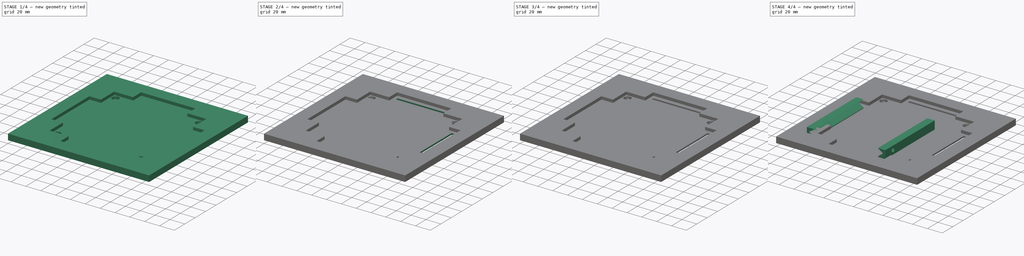
[diagram: build sequence overview — one tinted view per stage of 4, left to right]
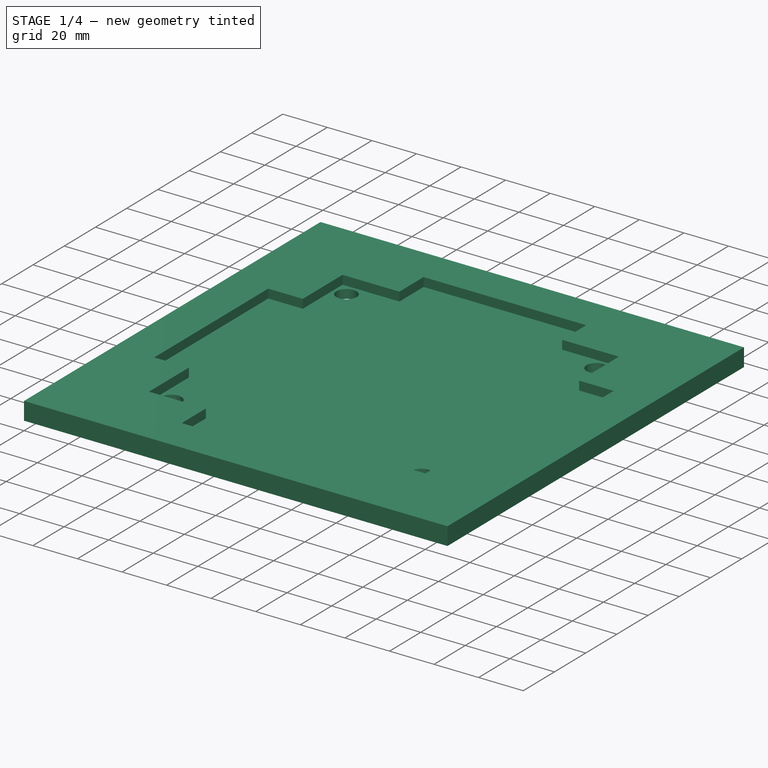
[diagram: stage 1 of 4 — iso view after this stage's code; geometry added in this stage tinted green]
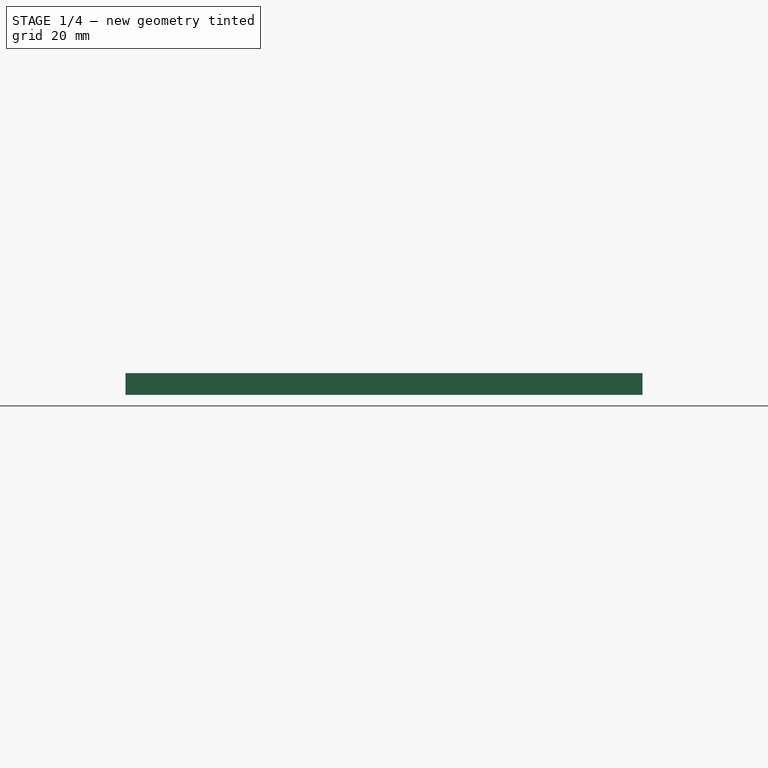
[diagram: stage 1 of 4 — front view after this stage's code; geometry added in this stage tinted green]
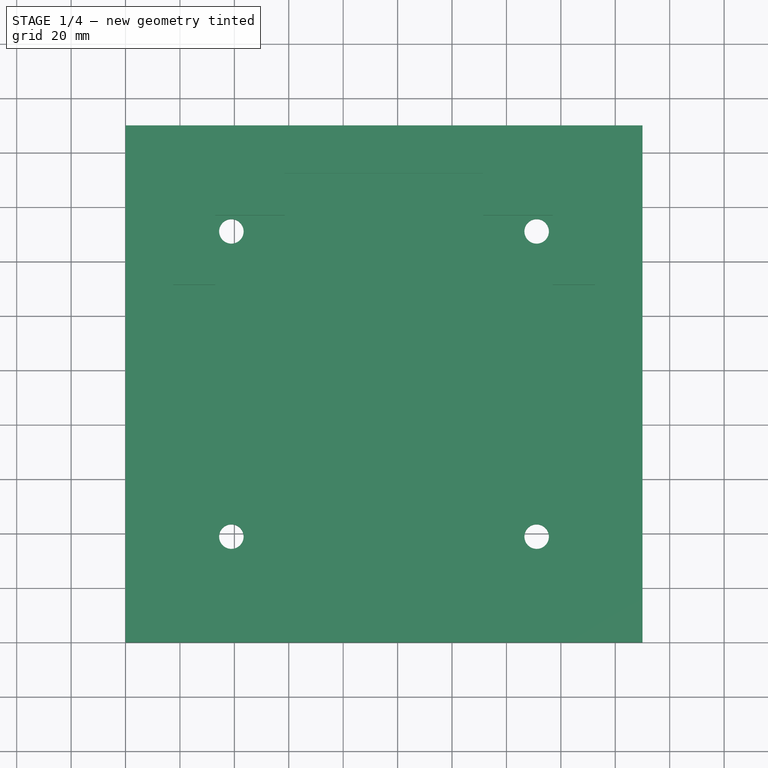
[diagram: stage 1 of 4 — top view after this stage's code; geometry added in this stage tinted green]
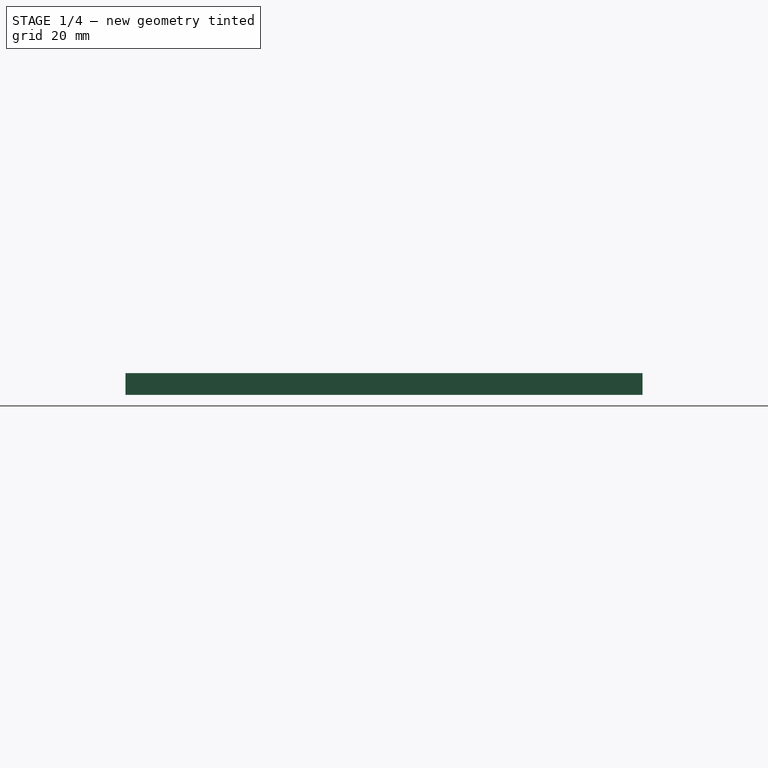
[diagram: stage 1 of 4 — right view after this stage's code; geometry added in this stage tinted green]
FCSTD DOCUMENT  (FreeCAD 0.18R16146 (Git))
Label: BigBase
License: All rights reserved
LicenseURL: http://en.wikipedia.org/wiki/All_rights_reserved
objects: Sketcher::SketchObject×12, PartDesign::Pocket×9, PartDesign::Pad×3, PartDesign::Body×2
note: 38 computed .brp shape members not serialized (recipe doc carries the construction recipe); baked Part::Feature solids carry a one-line shape summary decoded from their .brp

FEATURE [Sketcher::SketchObject] Sketch
  MapMode = 5
  Support = -> [XY_Plane]
  sketch-geometry (4):
    g0: LineSegment StartX=0 StartY=0 StartZ=0 EndX=190 EndY=0 EndZ=0
    g1: LineSegment StartX=0 StartY=0 StartZ=0 EndX=0 EndY=190 EndZ=0
    g2: LineSegment StartX=0 StartY=190 StartZ=0 EndX=190 EndY=190 EndZ=0
    g3: LineSegment StartX=190 StartY=190 StartZ=0 EndX=190 EndY=0 EndZ=0
  constraints (11):
    c: Coincident(g0,g-1)
    c: PointOnObject(g0,g-1)
    c: Coincident(g1,g0)
    c: PointOnObject(g1,g-2)
    c: Distance(g1) = 190
    c: Distance(g0) = 190
    c: Coincident(g2,g1)
    c: Horizontal(g2)
    c: Coincident(g3,g2)
    c: Coincident(g3,g0)
    c: Vertical(g3)
FEATURE [PartDesign::Pad] Pad
  Length = 8
  Length2 = 100
  Profile = -> Sketch
  Type = 0
FEATURE [PartDesign::Body] Body001  label="BaseFloor"
  Group = -> [Sketch001,Pad002,Sketch007,Pocket,Sketch002,Pocket001,Sketch003,Pocket002,Sketch004,Pad001,Sketch005,Pocket003,Sketch006,Pocket004]
  Origin = -> Origin001
  Placement = pos=(20,20.1,4) rot=(0,0,-1;0rad)
  Tip = -> Pocket004
FEATURE [Sketcher::SketchObject] Sketch008
  MapMode = 5
  Placement = pos=(0,0,8) rot=(0,0,1;0rad)
  Support = -> [Pad]
  expr: Constraints[59] = (190 - (73 + 25.5 * 2)) / 2
  expr: Constraints[58] = (190 - (73 + 25.5 * 2)) / 2
  sketch-geometry (22):
    g0: LineSegment StartX=17.5 StartY=131.5 StartZ=0 EndX=17.5 EndY=58.5 EndZ=0
    g1: LineSegment StartX=17.5 StartY=131.5 StartZ=0 EndX=33 EndY=131.5 EndZ=0
    g2: LineSegment StartX=17.5 StartY=58.5 StartZ=0 EndX=33 EndY=58.5 EndZ=0
    g3: LineSegment StartX=33 StartY=58.5 StartZ=0 EndX=33 EndY=33 EndZ=0
    g4: LineSegment StartX=33 StartY=33 StartZ=0 EndX=58.5 EndY=33 EndZ=0
    g5: LineSegment StartX=33 StartY=131.5 StartZ=0 EndX=33 EndY=157 EndZ=0
    g6: LineSegment StartX=33 StartY=157 StartZ=0 EndX=58.5 EndY=157 EndZ=0
    g7: LineSegment StartX=58.5 StartY=157 StartZ=0 EndX=58.5 EndY=172.5 EndZ=0
    g8: LineSegment StartX=58.5 StartY=172.5 StartZ=0 EndX=131.5 EndY=172.5 EndZ=0
    g9: LineSegment StartX=131.5 StartY=172.5 StartZ=0 EndX=131.5 EndY=157 EndZ=0
    g10: LineSegment StartX=131.5 StartY=157 StartZ=0 EndX=157 EndY=157 EndZ=0
    g11: LineSegment StartX=157 StartY=157 StartZ=0 EndX=157 EndY=131.5 EndZ=0
    g12: LineSegment StartX=157 StartY=131.5 StartZ=0 EndX=172.5 EndY=131.5 EndZ=0
    g13: LineSegment StartX=172.5 StartY=131.5 StartZ=0 EndX=172.5 EndY=58.5 EndZ=0
    g14: LineSegment StartX=172.5 StartY=58.5 StartZ=0 EndX=157 EndY=58.5 EndZ=0
    g15: LineSegment StartX=157 StartY=58.5 StartZ=0 EndX=157 EndY=33 EndZ=0
    g16: LineSegment StartX=157 StartY=33 StartZ=0 EndX=131.5 EndY=33 EndZ=0
    g17: LineSegment StartX=58.5 StartY=33 StartZ=0 EndX=58.5 EndY=17.5 EndZ=0
    g18: LineSegment StartX=58.5 StartY=17.5 StartZ=0 EndX=131.5 EndY=17.5 EndZ=0
    g19: LineSegment StartX=131.5 StartY=17.5 StartZ=0 EndX=131.5 EndY=33 EndZ=0
    g20: LineSegment [constr] StartX=0 StartY=200 StartZ=0 EndX=200 EndY=200 EndZ=0
    g21: LineSegment [constr] StartX=200 StartY=200 StartZ=0 EndX=200 EndY=0 EndZ=0
  constraints (67):
    c: Vertical(g0)
    c: Coincident(g1,g0)
    c: Horizontal(g1)
    c: Coincident(g2,g0)
    c: Coincident(g3,g2)
    c: Vertical(g3)
    c: Coincident(g4,g3)
    c: Coincident(g5,g1)
    c: Coincident(g6,g5)
    c: Coincident(g7,g6)
    c: Vertical(g7)
    c: Coincident(g8,g7)
    c: Coincident(g9,g8)
    c: Coincident(g10,g9)
    c: Horizontal(g10)
    c: Coincident(g11,g10)
    c: Vertical(g11)
    c: Coincident(g12,g11)
    c: Horizontal(g12)
    c: Coincident(g13,g12)
    c: Vertical(g13)
    c: Coincident(g14,g13)
    c: Coincident(g15,g14)
    c: Vertical(g15)
    c: Coincident(g16,g15)
    c: Coincident(g17,g4)
    c: Coincident(g18,g17)
    c: Coincident(g19,g18)
    c: Coincident(g19,g16)
    c: Vertical(g19)
    c: Horizontal(g4)
    c: Distance(g4) = 25.5
    c: Distance(g18) = 73
    c: Vertical(g17)
    c: Distance(g16) = 25.5
    c: Distance(g17) = 15.5
    c: Distance(g19) = 15.5
    c: Distance(g3) = 25.5
    c: Distance(g2) = 15.5
    c: Distance(g0) = 73
    c: Horizontal(g2)
    c: Distance(g1) = 15.5
    c: Distance(g5) = 25.5
    c: Distance(g6) = 25.5
    c: Distance(g7) = 15.5
    c: Vertical(g5)
    c: Horizontal(g6)
    c: Horizontal(g8)
    c: Horizontal(g14)
    c: Distance(g8) = 73
    c: Vertical(g9)
    c: Distance(g9) = 15.5
    c: Distance(g10) = 25.5
    c: Distance(g11) = 25.5
    c: Distance(g12) = 15.5
    c: Distance(g13) = 73
    c: Distance(g15) = 25.5
    c: Horizontal(g16)
    c: Distance(g3,g-1) = 33
    c: Distance(g3,g-2) = 33
    c: PointOnObject(g20,g-2)
    c: Horizontal(g20)
    c: PointOnObject(g21,g-1)
    c: Vertical(g21)
    c: DistanceY(g21,g21) = 200
    c: DistanceX(g20,g20) = 200
    c: Coincident(g21,g20)
FEATURE [PartDesign::Pocket] Pocket005
  BaseFeature = -> Pad
  Length = 4
  Length2 = 100
  Profile = -> Sketch008
  Type = 0
FEATURE [Sketcher::SketchObject] Sketch009
  ExternalGeometry = -> [Pocket005]
  MapMode = 5
  Placement = pos=(0,0,4) rot=(0,0,1;0rad)
  Support = -> [Pocket005]
  sketch-geometry (4):
    g0: Circle CenterX=38.9 CenterY=151.1 CenterZ=0 NormalX=0 NormalY=0 NormalZ=1 AngleXU=0 Radius=4.5
    g1: Circle CenterX=151.1 CenterY=151.1 CenterZ=0 NormalX=0 NormalY=0 NormalZ=1 AngleXU=0 Radius=4.5
    g2: Circle CenterX=151.1 CenterY=38.9 CenterZ=0 NormalX=0 NormalY=0 NormalZ=1 AngleXU=0 Radius=4.5
    g3: Circle CenterX=38.9 CenterY=38.9 CenterZ=0 NormalX=0 NormalY=0 NormalZ=1 AngleXU=0 Radius=4.5
  constraints (12):
    c: Radius(g0) = 4.5
    c: Radius(g1) = 4.5
    c: Radius(g2) = 4.5
    c: Distance(g3,g-10) = 5.9
    c: Distance(g3,g-9) = 5.9
    c: Radius(g3) = 4.5
    c: Distance(g0,g-4) = 5.9
    c: Distance(g0,g-3) = 5.9
    c: Distance(g1,g-5) = 5.9
    c: Distance(g1,g-6) = 5.9
    c: Distance(g2,g-7) = 5.9
    c: Distance(g2,g-8) = 5.9
FEATURE [PartDesign::Pocket] Pocket006
  BaseFeature = -> Pocket005
  Length = 3
  Length2 = 100
  Profile = -> Sketch009
  Type = 1
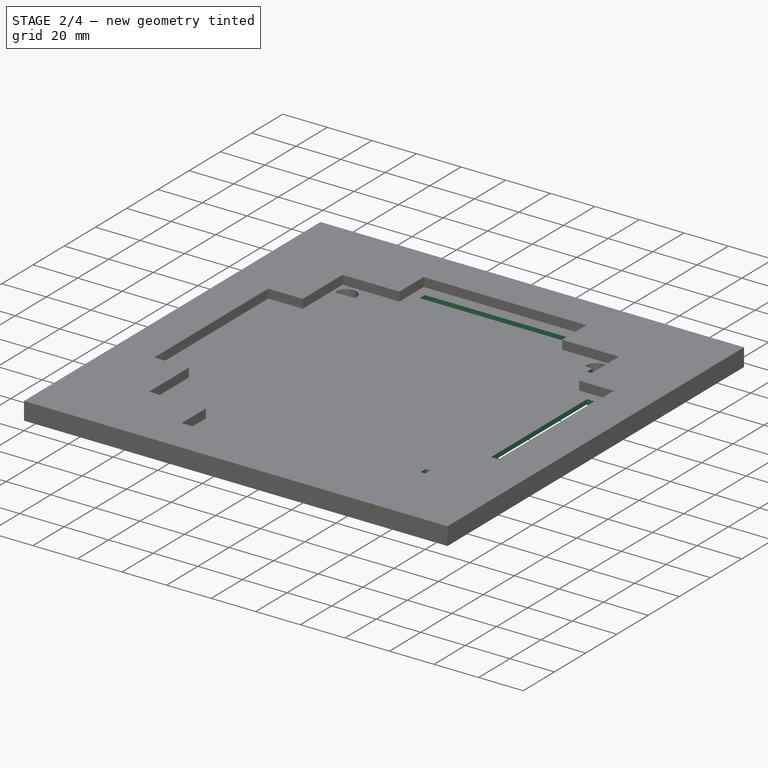
[diagram: stage 2 of 4 — iso view after this stage's code; geometry added in this stage tinted green]
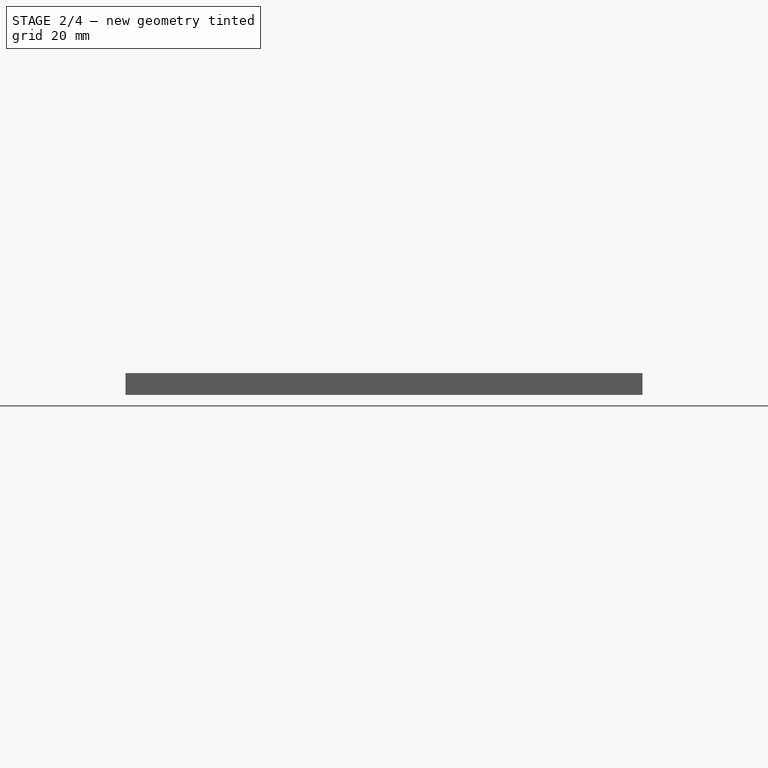
[diagram: stage 2 of 4 — front view after this stage's code; geometry added in this stage tinted green]
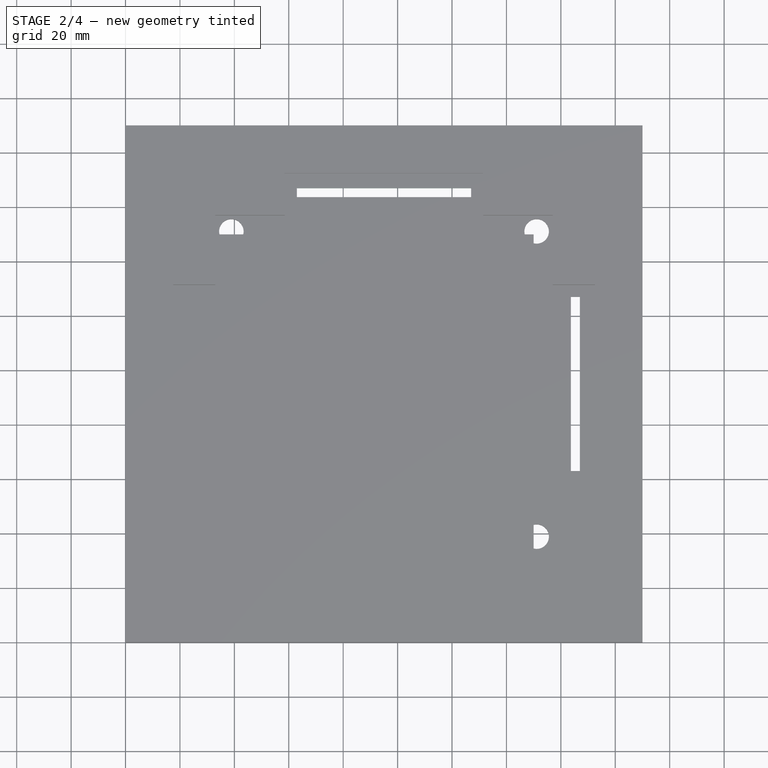
[diagram: stage 2 of 4 — top view after this stage's code; geometry added in this stage tinted green]
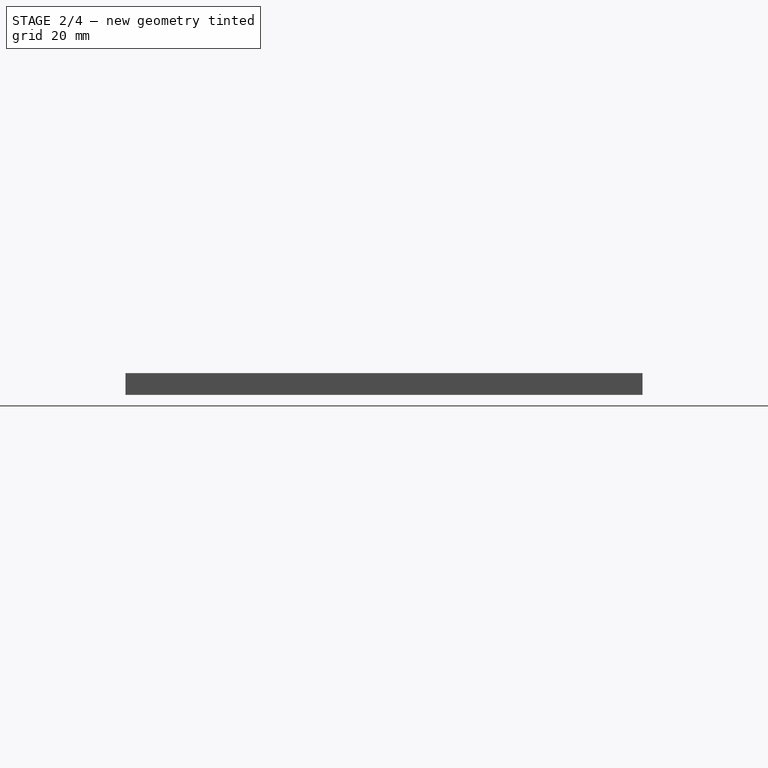
[diagram: stage 2 of 4 — right view after this stage's code; geometry added in this stage tinted green]
FEATURE [Sketcher::SketchObject] Sketch001
  MapMode = 5
  Support = -> [XY_Plane001]
  sketch-geometry (4):
    g0: LineSegment StartX=0 StartY=0 StartZ=0 EndX=0 EndY=150 EndZ=0
    g1: LineSegment StartX=0 StartY=150 StartZ=0 EndX=150 EndY=150 EndZ=0
    g2: LineSegment StartX=150 StartY=150 StartZ=0 EndX=150 EndY=0 EndZ=0
    g3: LineSegment StartX=150 StartY=0 StartZ=0 EndX=0 EndY=0 EndZ=0
  constraints (11):
    c: Coincident(g0,g-1)
    c: PointOnObject(g0,g-2)
    c: Coincident(g1,g0)
    c: Horizontal(g1)
    c: Coincident(g2,g1)
    c: PointOnObject(g2,g-1)
    c: Vertical(g2)
    c: Coincident(g3,g2)
    c: Coincident(g3,g0)
    c: Distance(g3) = 150
    c: Distance(g0) = 150
FEATURE [PartDesign::Pad] Pad002
  Length = 4
  Length2 = 100
  Profile = -> Sketch001
  Type = 0
FEATURE [Sketcher::SketchObject] Sketch010
  ExternalGeometry = -> [Pocket006]
  MapMode = 5
  Placement = pos=(0,0,4) rot=(0,0,1;0rad)
  Support = -> [Pocket006]
  sketch-geometry (16):
    g0: LineSegment StartX=23 StartY=127 StartZ=0 EndX=26.3 EndY=127 EndZ=0
    g1: LineSegment StartX=26.3 StartY=127 StartZ=0 EndX=26.3 EndY=63 EndZ=0
    g2: LineSegment StartX=26.3 StartY=63 StartZ=0 EndX=23 EndY=63 EndZ=0
    g3: LineSegment StartX=23 StartY=63 StartZ=0 EndX=23 EndY=127 EndZ=0
    g4: LineSegment StartX=163.7 StartY=127 StartZ=0 EndX=167 EndY=127 EndZ=0
    g5: LineSegment StartX=167 StartY=127 StartZ=0 EndX=167 EndY=63 EndZ=0
    g6: LineSegment StartX=167 StartY=63 StartZ=0 EndX=163.7 EndY=63 EndZ=0
    g7: LineSegment StartX=163.7 StartY=63 StartZ=0 EndX=163.7 EndY=127 EndZ=0
    g8: LineSegment StartX=63 StartY=26.3 StartZ=0 EndX=127 EndY=26.3 EndZ=0
    g9: LineSegment StartX=127 StartY=26.3 StartZ=0 EndX=127 EndY=23 EndZ=0
    g10: LineSegment StartX=127 StartY=23 StartZ=0 EndX=63 EndY=23 EndZ=0
    g11: LineSegment StartX=63 StartY=23 StartZ=0 EndX=63 EndY=26.3 EndZ=0
    g12: LineSegment StartX=63 StartY=167 StartZ=0 EndX=127 EndY=167 EndZ=0
    g13: LineSegment StartX=127 StartY=167 StartZ=0 EndX=127 EndY=163.7 EndZ=0
    g14: LineSegment StartX=127 StartY=163.7 StartZ=0 EndX=63 EndY=163.7 EndZ=0
    g15: LineSegment StartX=63 StartY=163.7 StartZ=0 EndX=63 EndY=167 EndZ=0
  constraints (48):
    c: Coincident(g0,g1)
    c: Coincident(g1,g2)
    c: Coincident(g2,g3)
    c: Coincident(g3,g0)
    c: Horizontal(g0)
    c: Horizontal(g2)
    c: Vertical(g1)
    c: Vertical(g3)
    c: Distance(g3) = 64
    c: Distance(g0) = 3.3
    c: Distance(g2,g-3) = 5.5
    c: Distance(g1,g-4) = 4.5
    c: Coincident(g4,g5)
    c: Coincident(g5,g6)
    c: Coincident(g6,g7)
    c: Coincident(g7,g4)
    c: Horizontal(g4)
    c: Horizontal(g6)
    c: Vertical(g5)
    c: Vertical(g7)
    c: Distance(g6) = 3.3
    c: Distance(g7) = 64
    c: Distance(g5,g-6) = 4.5
    c: Coincident(g8,g9)
    c: Coincident(g9,g10)
    c: Coincident(g10,g11)
    c: Coincident(g11,g8)
    c: Horizontal(g8)
    c: Horizontal(g10)
    c: Vertical(g9)
    c: Vertical(g11)
    c: Distance(g10) = 64
    c: Distance(g11) = 3.3
    c: Distance(g10,g-7) = 5.5
    c: Distance(g8,g-8) = 4.5
    c: Coincident(g12,g13)
    c: Coincident(g13,g14)
    c: Coincident(g14,g15)
    c: Coincident(g15,g12)
    c: Horizontal(g12)
    c: Horizontal(g14)
    c: Vertical(g13)
    c: Vertical(g15)
    c: Distance(g14) = 64
    c: Distance(g15) = 3.3
    c: Distance(g12,g-10) = 4.5
    c: Distance(g4,g-5) = 5.5
    c: Distance(g12,g-9) = 5.5
FEATURE [PartDesign::Pocket] Pocket007
  BaseFeature = -> Pocket006
  Length = 5
  Length2 = 100
  Profile = -> Sketch010
  Type = 1
FEATURE [Sketcher::SketchObject] Sketch011
  ExternalGeometry = -> [Pocket007]
  MapMode = 5
  Placement = pos=(0,0,0) rot=(1,0,0;3.14159rad)
  Support = -> [Pocket007]
  expr: Constraints[47] = (70 - 64) / 2
  expr: Constraints[46] = (8 - 3.3) / 2
  expr: Constraints[35] = (70 - 64) / 2
  expr: Constraints[21] = (8 - 3.3) / 2
  expr: Constraints[23] = (70 - 64) / 2
  expr: Constraints[34] = (8 - 3.3) / 2
  expr: Constraints[22] = (8 - 3.3) / 2
  sketch-geometry (16):
    g0: LineSegment StartX=20.65 StartY=-60 StartZ=0 EndX=28.65 EndY=-60 EndZ=0
    g1: LineSegment StartX=28.65 StartY=-60 StartZ=0 EndX=28.65 EndY=-130 EndZ=0
    g2: LineSegment StartX=28.65 StartY=-130 StartZ=0 EndX=20.65 EndY=-130 EndZ=0
    g3: LineSegment StartX=20.65 StartY=-130 StartZ=0 EndX=20.65 EndY=-60 EndZ=0
    g4: LineSegment StartX=60 StartY=-169.35 StartZ=0 EndX=130 EndY=-169.35 EndZ=0
    g5: LineSegment StartX=130 StartY=-169.35 StartZ=0 EndX=130 EndY=-161.35 EndZ=0
    g6: LineSegment StartX=130 StartY=-161.35 StartZ=0 EndX=60 EndY=-161.35 EndZ=0
    g7: LineSegment StartX=60 StartY=-161.35 StartZ=0 EndX=60 EndY=-169.35 EndZ=0
    g8: LineSegment StartX=60 StartY=-20.65 StartZ=0 EndX=130 EndY=-20.65 EndZ=0
    g9: LineSegment StartX=130 StartY=-20.65 StartZ=0 EndX=130 EndY=-28.65 EndZ=0
    g10: LineSegment StartX=130 StartY=-28.65 StartZ=0 EndX=60 EndY=-28.65 EndZ=0
    g11: LineSegment StartX=60 StartY=-28.65 StartZ=0 EndX=60 EndY=-20.65 EndZ=0
    g12: LineSegment StartX=161.35 StartY=-60 StartZ=0 EndX=169.35 EndY=-60 EndZ=0
    g13: LineSegment StartX=169.35 StartY=-60 StartZ=0 EndX=169.35 EndY=-130 EndZ=0
    g14: LineSegment StartX=169.35 StartY=-130 StartZ=0 EndX=161.35 EndY=-130 EndZ=0
    g15: LineSegment StartX=161.35 StartY=-130 StartZ=0 EndX=161.35 EndY=-60 EndZ=0
  constraints (48):
    c: Coincident(g0,g1)
    c: Coincident(g1,g2)
    c: Coincident(g2,g3)
    c: Coincident(g3,g0)
    c: Horizontal(g0)
    c: Horizontal(g2)
    c: Vertical(g1)
    c: Vertical(g3)
    c: Coincident(g4,g5)
    c: Coincident(g5,g6)
    c: Coincident(g6,g7)
    c: Coincident(g7,g4)
    c: Horizontal(g4)
    c: Horizontal(g6)
    c: Vertical(g5)
    c: Vertical(g7)
    c: Distance(g0) = 8
    c: Distance(g3) = 70
    c: Distance(g-4,g2) = 3
    c: Distance(g4) = 70
    c: Distance(g7) = 8
    c: Distance(g-4,g3) = 2.35
    c: Distance(g-5,g4) = 2.35
    c: Distance(g-6,g7) = 3
    c: Coincident(g8,g9)
    c: Coincident(g9,g10)
    c: Coincident(g10,g11)
    c: Coincident(g11,g8)
    c: Horizontal(g8)
    c: Horizontal(g10)
    c: Vertical(g9)
    c: Vertical(g11)
    c: Distance(g8) = 70
    c: Distance(g11) = 8
    c: Distance(g-8,g8) = 2.35
    c: Distance(g-8,g11) = 3
    c: Coincident(g12,g13)
    c: Coincident(g13,g14)
    c: Coincident(g14,g15)
    c: Coincident(g15,g12)
    c: Horizontal(g12)
    c: Horizontal(g14)
    c: Vertical(g13)
    c: Vertical(g15)
    c: Distance(g13) = 70
    c: Distance(g12) = 8
    c: Distance(g-9,g13) = 2.35
    c: Distance(g-10,g12) = 3
FEATURE [PartDesign::Pocket] Pocket008
  BaseFeature = -> Pocket007
  Length = 2
  Length2 = 100
  Profile = -> Sketch011
  Type = 0
FEATURE [PartDesign::Body] Body
  Group = -> [Sketch,Pad,Sketch008,Pocket005,Sketch009,Pocket006,Sketch010,Pocket007,Sketch011,Pocket008]
  Origin = -> Origin
  Tip = -> Pocket008
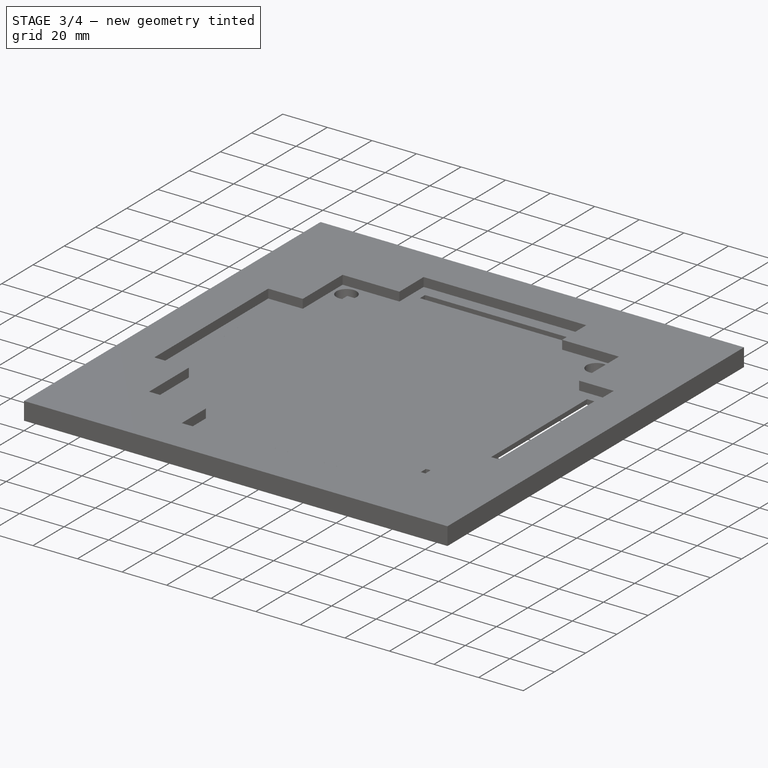
[diagram: stage 3 of 4 — iso view after this stage's code; geometry added in this stage tinted green]
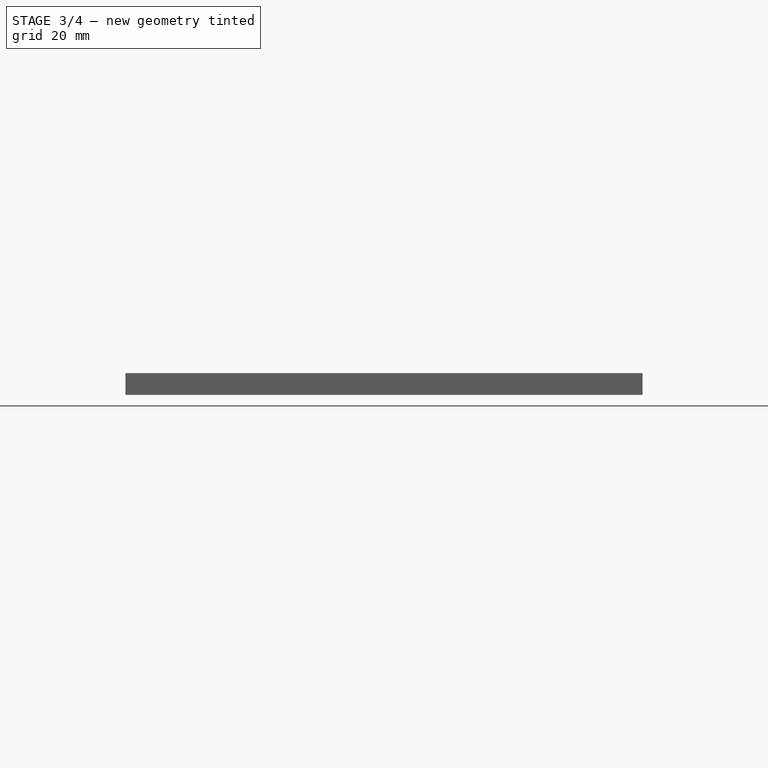
[diagram: stage 3 of 4 — front view after this stage's code; geometry added in this stage tinted green]
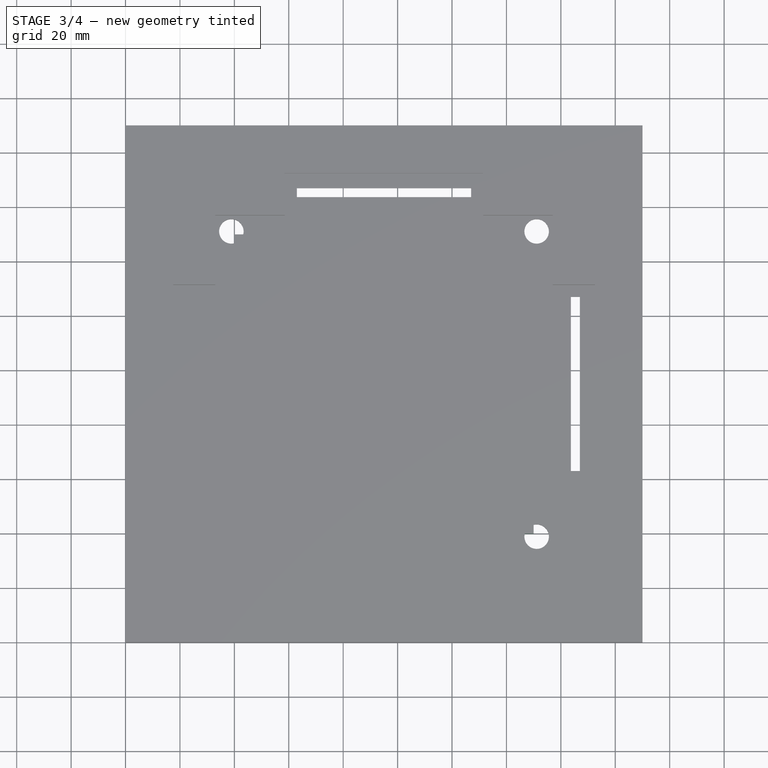
[diagram: stage 3 of 4 — top view after this stage's code; geometry added in this stage tinted green]
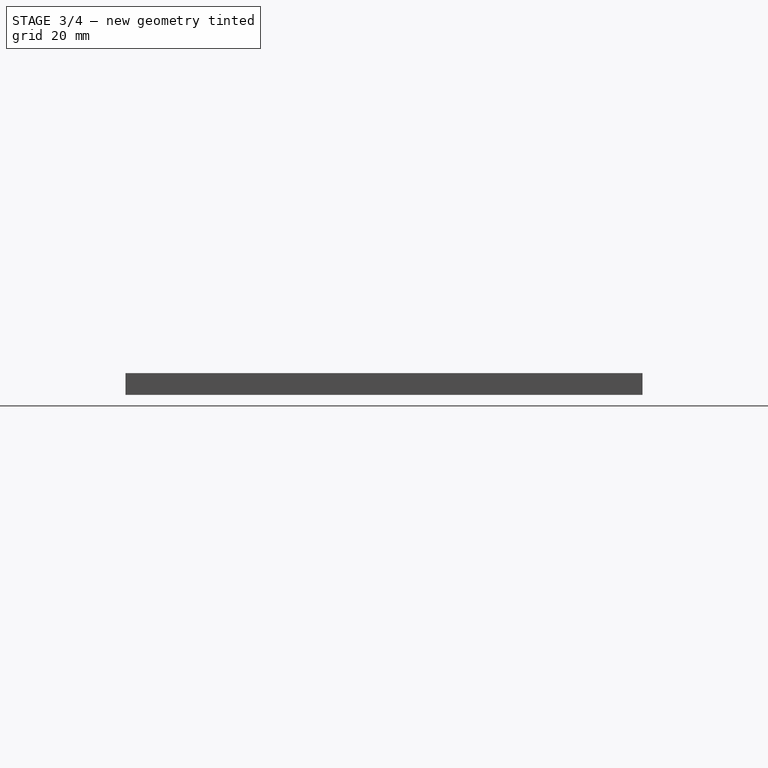
[diagram: stage 3 of 4 — right view after this stage's code; geometry added in this stage tinted green]
FEATURE [Sketcher::SketchObject] Sketch007
  ExternalGeometry = -> [Pad002]
  MapMode = 5
  Placement = pos=(0,0,4) rot=(0,0,1;0rad)
  Support = -> [Pad002]
  sketch-geometry (28):
    g0: LineSegment StartX=0 StartY=110 StartZ=0 EndX=15 EndY=110 EndZ=0
    g1: LineSegment StartX=15 StartY=110 StartZ=0 EndX=15 EndY=135 EndZ=0
    g2: LineSegment StartX=15 StartY=135 StartZ=0 EndX=40 EndY=135 EndZ=0
    g3: LineSegment StartX=40 StartY=135 StartZ=0 EndX=40 EndY=150 EndZ=0
    g4: LineSegment [constr] StartX=0 StartY=110 StartZ=0 EndX=0 EndY=40 EndZ=0
    g5: LineSegment StartX=0 StartY=40 StartZ=0 EndX=15 EndY=40 EndZ=0
    g6: LineSegment StartX=15 StartY=40 StartZ=0 EndX=15 EndY=15 EndZ=0
    g7: LineSegment StartX=15 StartY=15 StartZ=0 EndX=40 EndY=15 EndZ=0
    g8: LineSegment StartX=40 StartY=15 StartZ=0 EndX=40 EndY=0 EndZ=0
    g9: LineSegment [constr] StartX=40 StartY=150 StartZ=0 EndX=110 EndY=150 EndZ=0
    g10: LineSegment StartX=110 StartY=150 StartZ=0 EndX=110 EndY=135 EndZ=0
    g11: LineSegment StartX=110 StartY=135 StartZ=0 EndX=135 EndY=135 EndZ=0
    g12: LineSegment StartX=135 StartY=135 StartZ=0 EndX=135 EndY=110 EndZ=0
    g13: LineSegment StartX=135 StartY=110 StartZ=0 EndX=150 EndY=110 EndZ=0
    g14: LineSegment [constr] StartX=150 StartY=110 StartZ=0 EndX=150 EndY=40 EndZ=0
    g15: LineSegment StartX=150 StartY=40 StartZ=0 EndX=135 EndY=40 EndZ=0
    g16: LineSegment StartX=135 StartY=40 StartZ=0 EndX=135 EndY=15 EndZ=0
    g17: LineSegment StartX=135 StartY=15 StartZ=0 EndX=110 EndY=15 EndZ=0
    g18: LineSegment StartX=110 StartY=15 StartZ=0 EndX=110 EndY=0 EndZ=0
    g19: LineSegment [constr] StartX=110 StartY=0 StartZ=0 EndX=40 EndY=0 EndZ=0
    g20: LineSegment StartX=0 StartY=110 StartZ=0 EndX=0 EndY=150 EndZ=0
    g21: LineSegment StartX=0 StartY=150 StartZ=0 EndX=40 EndY=150 EndZ=0
    g22: LineSegment StartX=0 StartY=40 StartZ=0 EndX=0 EndY=0 EndZ=0
    g23: LineSegment StartX=0 StartY=0 StartZ=0 EndX=40 EndY=0 EndZ=0
    g24: LineSegment StartX=110 StartY=0 StartZ=0 EndX=150 EndY=0 EndZ=0
    g25: LineSegment StartX=150 StartY=0 StartZ=0 EndX=150 EndY=40 EndZ=0
    g26: LineSegment StartX=150 StartY=110 StartZ=0 EndX=150 EndY=150 EndZ=0
    g27: LineSegment StartX=150 StartY=150 StartZ=0 EndX=110 EndY=150 EndZ=0
  constraints (76):
    c: PointOnObject(g0,g-4)
    c: Horizontal(g0)
    c: Coincident(g1,g0)
    c: Vertical(g1)
    c: Coincident(g2,g1)
    c: Horizontal(g2)
    c: Coincident(g3,g2)
    c: PointOnObject(g3,g-3)
    c: Vertical(g3)
    c: Distance(g0) = 15
    c: Distance(g1) = 25
    c: Distance(g2) = 25
    c: Distance(g3) = 15
    c: Coincident(g4,g0)
    c: PointOnObject(g4,g-4)
    c: Coincident(g5,g4)
    c: Horizontal(g5)
    c: Coincident(g6,g5)
    c: Vertical(g6)
    c: Coincident(g7,g6)
    c: Horizontal(g7)
    c: Coincident(g8,g7)
    c: PointOnObject(g8,g-6)
    c: Vertical(g8)
    c: Distance(g4) = 70
    c: Distance(g5) = 15
    c: Distance(g7) = 25
    c: Distance(g6) = 25
    c: Coincident(g9,g3)
    c: PointOnObject(g9,g-3)
    c: Coincident(g10,g9)
    c: Vertical(g10)
    c: Coincident(g11,g10)
    c: Horizontal(g11)
    c: Coincident(g12,g11)
    c: Vertical(g12)
    c: Coincident(g13,g12)
    c: PointOnObject(g13,g-5)
    c: Horizontal(g13)
    c: Coincident(g14,g13)
    c: PointOnObject(g14,g-5)
    c: Coincident(g15,g14)
    c: Horizontal(g15)
    c: Coincident(g16,g15)
    c: Vertical(g16)
    c: Coincident(g17,g16)
    c: Horizontal(g17)
    c: Coincident(g18,g17)
    c: PointOnObject(g18,g-6)
    c: Vertical(g18)
    c: Coincident(g19,g18)
    c: Coincident(g19,g8)
    c: Distance(g19) = 70
    c: Distance(g9) = 70
    c: Distance(g10) = 15
    c: Distance(g13) = 15
    c: Distance(g15) = 15
    c: Distance(g18) = 15
    c: Distance(g14) = 70
    c: Distance(g12) = 25
    c: Coincident(g20,g0)
    c: Coincident(g20,g-4)
    c: Coincident(g21,g20)
    c: Coincident(g22,g4)
    c: Coincident(g22,g-1)
    c: Coincident(g23,g22)
    c: Coincident(g24,g18)
    c: Coincident(g24,g-6)
    c: Coincident(g25,g24)
    c: Coincident(g25,g14)
    c: Coincident(g26,g13)
    c: Coincident(g26,g-5)
    c: Coincident(g27,g26)
    c: Coincident(g27,g9)
    c: Coincident(g23,g8)
    c: Coincident(g21,g3)
FEATURE [PartDesign::Pocket] Pocket
  BaseFeature = -> Pad002
  Length = 5
  Length2 = 100
  Profile = -> Sketch007
  Type = 1
FEATURE [Sketcher::SketchObject] Sketch002
  ExternalGeometry = -> [Pocket]
  MapMode = 5
  Placement = pos=(0,0,4) rot=(0,0,1;0rad)
  Support = -> [Pocket]
  sketch-geometry (20):
    g0: LineSegment StartX=3 StartY=107 StartZ=0 EndX=6.3 EndY=107 EndZ=0
    g1: LineSegment StartX=6.3 StartY=107 StartZ=0 EndX=6.3 EndY=43 EndZ=0
    g2: LineSegment StartX=6.3 StartY=43 StartZ=0 EndX=3 EndY=43 EndZ=0
    g3: LineSegment StartX=3 StartY=43 StartZ=0 EndX=3 EndY=107 EndZ=0
    g4: LineSegment StartX=43 StartY=147 StartZ=0 EndX=107 EndY=147 EndZ=0
    g5: LineSegment StartX=107 StartY=147 StartZ=0 EndX=107 EndY=143.7 EndZ=0
    g6: LineSegment StartX=107 StartY=143.7 StartZ=0 EndX=43 EndY=143.7 EndZ=0
    g7: LineSegment StartX=43 StartY=143.7 StartZ=0 EndX=43 EndY=147 EndZ=0
    g8: LineSegment StartX=143.7 StartY=107 StartZ=0 EndX=147 EndY=107 EndZ=0
    g9: LineSegment StartX=147 StartY=107 StartZ=0 EndX=147 EndY=43 EndZ=0
    g10: LineSegment StartX=147 StartY=43 StartZ=0 EndX=143.7 EndY=43 EndZ=0
    g11: LineSegment StartX=143.7 StartY=43 StartZ=0 EndX=143.7 EndY=107 EndZ=0
    g12: LineSegment StartX=43 StartY=6.3 StartZ=0 EndX=107 EndY=6.3 EndZ=0
    g13: LineSegment StartX=107 StartY=6.3 StartZ=0 EndX=107 EndY=3 EndZ=0
    g14: LineSegment StartX=107 StartY=3 StartZ=0 EndX=43 EndY=3 EndZ=0
    g15: LineSegment StartX=43 StartY=3 StartZ=0 EndX=43 EndY=6.3 EndZ=0
    g16: Circle CenterX=18.9 CenterY=131.1 CenterZ=0 NormalX=0 NormalY=0 NormalZ=1 AngleXU=0 Radius=1.9
    g17: Circle CenterX=131.1 CenterY=131.1 CenterZ=0 NormalX=0 NormalY=0 NormalZ=1 AngleXU=0 Radius=1.9
    g18: Circle CenterX=131.1 CenterY=18.9 CenterZ=0 NormalX=0 NormalY=0 NormalZ=1 AngleXU=0 Radius=1.9
    g19: Circle CenterX=18.9 CenterY=18.9 CenterZ=0 NormalX=0 NormalY=0 NormalZ=1 AngleXU=0 Radius=1.9
  constraints (60):
    c: Coincident(g0,g1)
    c: Coincident(g1,g2)
    c: Coincident(g2,g3)
    c: Coincident(g3,g0)
    c: Horizontal(g0)
    c: Horizontal(g2)
    c: Vertical(g1)
    c: Vertical(g3)
    c: Coincident(g4,g5)
    c: Coincident(g5,g6)
    c: Coincident(g6,g7)
    c: Coincident(g7,g4)
    c: Horizontal(g4)
    c: Horizontal(g6)
    c: Vertical(g5)
    c: Vertical(g7)
    c: Coincident(g8,g9)
    c: Coincident(g9,g10)
    c: Coincident(g10,g11)
    c: Coincident(g11,g8)
    c: Horizontal(g8)
    c: Horizontal(g10)
    c: Vertical(g9)
    c: Vertical(g11)
    c: Coincident(g12,g13)
    c: Coincident(g13,g14)
    c: Coincident(g14,g15)
    c: Coincident(g15,g12)
    c: Horizontal(g12)
    c: Horizontal(g14)
    c: Vertical(g13)
    c: Vertical(g15)
    c: Distance(g3) = 64
    c: DistanceY(g0,g-4) = 3
    c: DistanceX(g-4,g0) = 3
    c: DistanceX(g0,g0) = 3.3
    c: DistanceY(g5,g5) = 3.3
    c: DistanceY(g4,g-6) = 3
    c: DistanceX(g-6,g4) = 3
    c: Distance(g6) = 64
    c: Distance(g11) = 64
    c: Distance(g8) = 3.3
    c: DistanceY(g8,g-8) = 3
    c: DistanceX(g8,g-8) = 3
    c: Distance(g12) = 64
    c: Distance(g15) = 3.3
    c: DistanceX(g13,g-10) = 3
    c: DistanceY(g-10,g13) = 3
    c: Radius(g19) = 1.9
    c: Radius(g18) = 1.9
    c: Radius(g16) = 1.9
    c: Radius(g17) = 1.9
    c: Distance(g16,g-11) = 3.9
    c: Distance(g16,g-12) = 3.9
    c: Distance(g19,g-18) = 3.9
    c: Distance(g19,g-17) = 3.9
    c: Distance(g18,g-16) = 3.9
    c: Distance(g18,g-15) = 3.9
    c: Distance(g17,g-13) = 3.9
    c: Distance(g17,g-14) = 3.9
FEATURE [PartDesign::Pocket] Pocket001
  BaseFeature = -> Pocket
  Length = 5
  Length2 = 100
  Profile = -> Sketch002
  Type = 0
FEATURE [Sketcher::SketchObject] Sketch003
  ExternalGeometry = -> [Pocket001]
  MapMode = 5
  Placement = pos=(0,0,0) rot=(1,0,0;3.14159rad)
  Support = -> [Pocket001]
  sketch-geometry (4):
    g0: Circle CenterX=18.9 CenterY=-131.1 CenterZ=0 NormalX=0 NormalY=0 NormalZ=1 AngleXU=0 Radius=2.95
    g1: Circle CenterX=18.9 CenterY=-18.9 CenterZ=0 NormalX=0 NormalY=0 NormalZ=1 AngleXU=0 Radius=2.95
    g2: Circle CenterX=131.1 CenterY=-18.9 CenterZ=0 NormalX=0 NormalY=0 NormalZ=1 AngleXU=0 Radius=2.95
    g3: Circle CenterX=131.1 CenterY=-131.1 CenterZ=0 NormalX=0 NormalY=0 NormalZ=1 AngleXU=0 Radius=2.95
  constraints (8):
    c: Coincident(g3,g-5)
    c: Coincident(g0,g-6)
    c: Coincident(g1,g-3)
    c: Coincident(g2,g-4)
    c: Radius(g2) = 2.95
    c: Radius(g1) = 2.95
    c: Radius(g0) = 2.95
    c: Radius(g3) = 2.95
FEATURE [PartDesign::Pocket] Pocket002
  BaseFeature = -> Pocket001
  Length = 3
  Length2 = 100
  Profile = -> Sketch003
  Type = 0
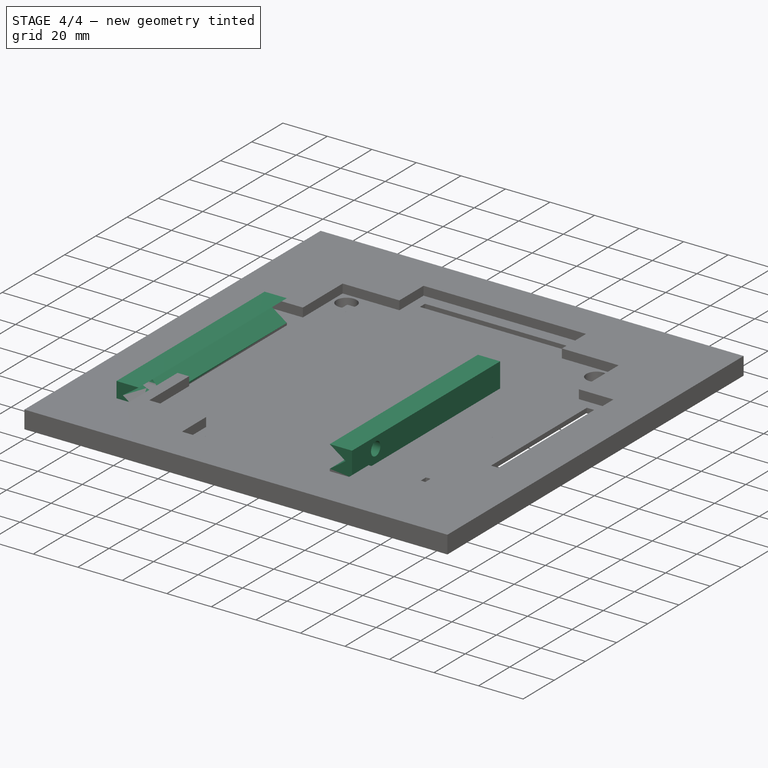
[diagram: stage 4 of 4 — iso view after this stage's code; geometry added in this stage tinted green]
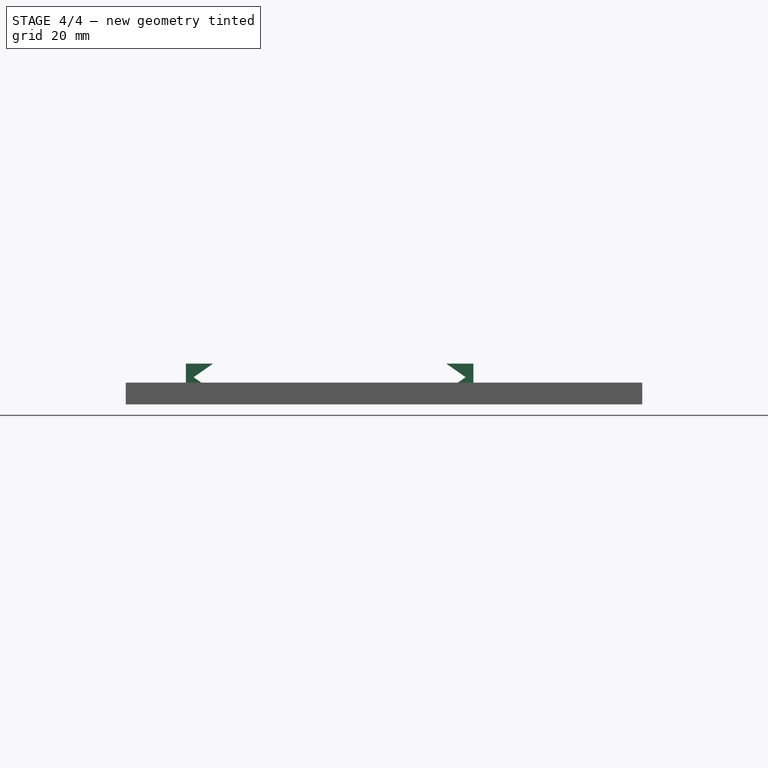
[diagram: stage 4 of 4 — front view after this stage's code; geometry added in this stage tinted green]
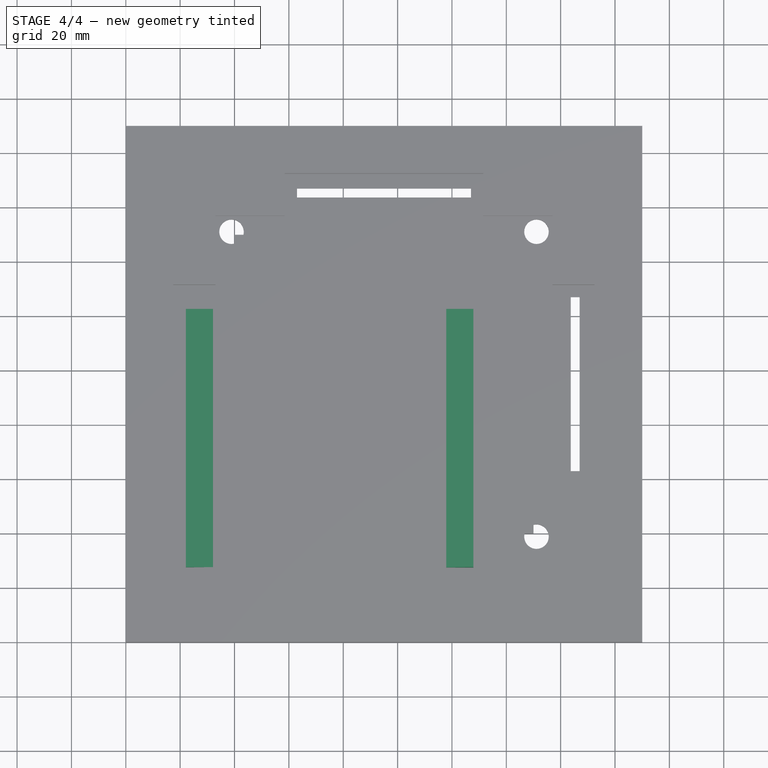
[diagram: stage 4 of 4 — top view after this stage's code; geometry added in this stage tinted green]
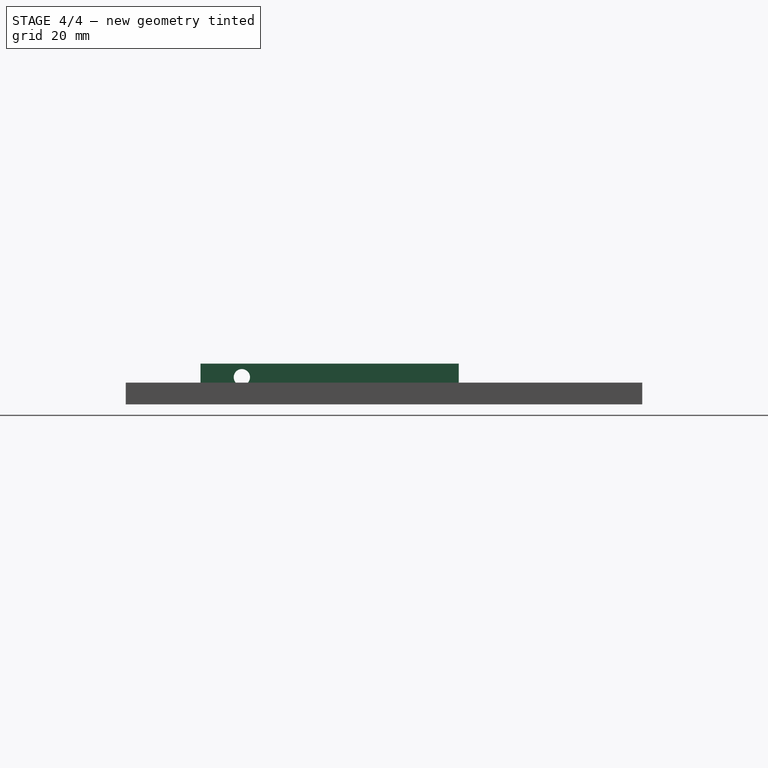
[diagram: stage 4 of 4 — right view after this stage's code; geometry added in this stage tinted green]
FEATURE [Sketcher::SketchObject] Sketch004
  ExternalGeometry = -> [Pocket002]
  MapMode = 5
  Placement = pos=(0,0,4) rot=(0,0,1;0rad)
  Support = -> [Pocket002]
  sketch-geometry (8):
    g0: LineSegment StartX=22.1 StartY=122.5 StartZ=0 EndX=32.1 EndY=122.5 EndZ=0
    g1: LineSegment StartX=32.1 StartY=122.5 StartZ=0 EndX=32.1 EndY=27.5 EndZ=0
    g2: LineSegment StartX=32.1 StartY=27.5 StartZ=0 EndX=22.1 EndY=27.5 EndZ=0
    g3: LineSegment StartX=22.1 StartY=27.5 StartZ=0 EndX=22.1 EndY=122.5 EndZ=0
    g4: LineSegment StartX=117.9 StartY=122.5 StartZ=0 EndX=127.9 EndY=122.5 EndZ=0
    g5: LineSegment StartX=127.9 StartY=122.5 StartZ=0 EndX=127.9 EndY=27.5 EndZ=0
    g6: LineSegment StartX=127.9 StartY=27.5 StartZ=0 EndX=117.9 EndY=27.5 EndZ=0
    g7: LineSegment StartX=117.9 StartY=27.5 StartZ=0 EndX=117.9 EndY=122.5 EndZ=0
  constraints (24):
    c: Coincident(g0,g1)
    c: Coincident(g1,g2)
    c: Coincident(g2,g3)
    c: Coincident(g3,g0)
    c: Horizontal(g0)
    c: Horizontal(g2)
    c: Vertical(g1)
    c: Vertical(g3)
    c: Coincident(g4,g5)
    c: Coincident(g5,g6)
    c: Coincident(g6,g7)
    c: Coincident(g7,g4)
    c: Horizontal(g4)
    c: Horizontal(g6)
    c: Vertical(g5)
    c: Vertical(g7)
    c: Distance(g6) = 10
    c: Distance(g5) = 95
    c: Distance(g2) = 10
    c: Distance(g1) = 95
    c: Distance(g-4,g3) = 7.1
    c: Distance(g-3,g0) = 12.5
    c: Distance(g-6,g5) = 7.1
    c: Distance(g4,g-5) = 12.5
FEATURE [PartDesign::Pad] Pad001
  BaseFeature = -> Pocket002
  Length = 11
  Length2 = 100
  Profile = -> Sketch004
  Type = 0
FEATURE [Sketcher::SketchObject] Sketch005
  ExternalGeometry = -> [Pad001]
  MapMode = 5
  Placement = pos=(0,27.5,0) rot=(1,0,0;1.5708rad)
  Support = -> [Pad001]
  sketch-geometry (15):
    g0: GeomPoint X=24.96 Y=15 Z=0
    g1: GeomPoint X=24.96 Y=4 Z=0
    g2: LineSegment [constr] StartX=24.96 StartY=15 StartZ=0 EndX=24.96 EndY=4 EndZ=0
    g3: GeomPoint X=24.96 Y=10 Z=0
    g4: LineSegment StartX=24.96 StartY=10 StartZ=0 EndX=32.1 EndY=15 EndZ=0
    g5: GeomPoint X=32.1 Y=5 Z=0
    g6: LineSegment StartX=24.96 StartY=10 StartZ=0 EndX=32.1 EndY=5 EndZ=0
    g7: LineSegment StartX=32.1 StartY=5 StartZ=0 EndX=32.1 EndY=15 EndZ=0
    g8: GeomPoint X=125.04 Y=15 Z=0
    g9: LineSegment [constr] StartX=125.04 StartY=15 StartZ=0 EndX=125.04 EndY=4 EndZ=0
    g10: GeomPoint X=125.04 Y=10 Z=0
    g11: GeomPoint X=117.9 Y=5 Z=0
    g12: LineSegment StartX=117.9 StartY=5 StartZ=0 EndX=125.04 EndY=10 EndZ=0
    g13: LineSegment StartX=125.04 StartY=10 StartZ=0 EndX=117.9 EndY=15 EndZ=0
    g14: LineSegment StartX=117.9 StartY=15 StartZ=0 EndX=117.9 EndY=5 EndZ=0
  constraints (31):
    c: PointOnObject(g0,g-3)
    c: PointOnObject(g1,g-6)
    c: Distance(g1,g-6) = 7.14
    c: Distance(g0,g-5) = 7.14
    c: Coincident(g2,g1)
    c: Coincident(g2,g0)
    c: PointOnObject(g3,g2)
    c: Distance(g0,g3) = 5
    c: Coincident(g4,g3)
    c: Coincident(g4,g-5)
    c: PointOnObject(g5,g-5)
    c: Distance(g5,g-6) = 1
    c: Coincident(g6,g3)
    c: Coincident(g6,g5)
    c: Coincident(g7,g4)
    c: Coincident(g7,g5)
    c: PointOnObject(g8,g-8)
    c: Distance(g-8,g8) = 7.14
    c: Coincident(g9,g8)
    c: PointOnObject(g9,g-10)
    c: Vertical(g9)
    c: PointOnObject(g10,g9)
    c: Distance(g8,g10) = 5
    c: PointOnObject(g11,g-7)
    c: Distance(g11,g-10) = 1
    c: Coincident(g12,g11)
    c: Coincident(g12,g10)
    c: Coincident(g13,g10)
    c: Coincident(g13,g-8)
    c: Coincident(g14,g13)
    c: Coincident(g14,g11)
FEATURE [PartDesign::Pocket] Pocket003
  BaseFeature = -> Pad001
  Length = 5
  Length2 = 100
  Profile = -> Sketch005
  Type = 1
FEATURE [Sketcher::SketchObject] Sketch006
  ExternalGeometry = -> [Pocket003]
  MapMode = 5
  Placement = pos=(22.1,0,0) rot=(0.57735,-0.57735,-0.57735;2.0944rad)
  Support = -> [Pocket003]
  sketch-geometry (1):
    g0: Circle CenterX=-42.7 CenterY=10 CenterZ=0 NormalX=0 NormalY=0 NormalZ=1 AngleXU=0 Radius=3
  constraints (3):
    c: Radius(g0) = 3
    c: Distance(g0,g-4) = 15.2
    c: Distance(g0,g-3) = 5
FEATURE [PartDesign::Pocket] Pocket004
  BaseFeature = -> Pocket003
  Length = 5
  Length2 = 100
  Profile = -> Sketch006
  Type = 1
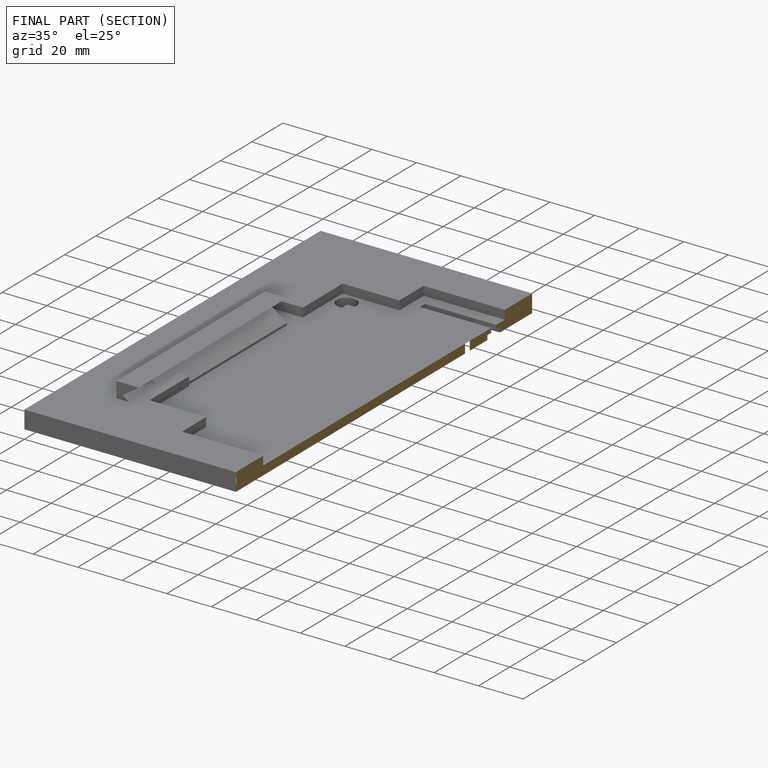
[diagram: finished part — half-section view (interior)]
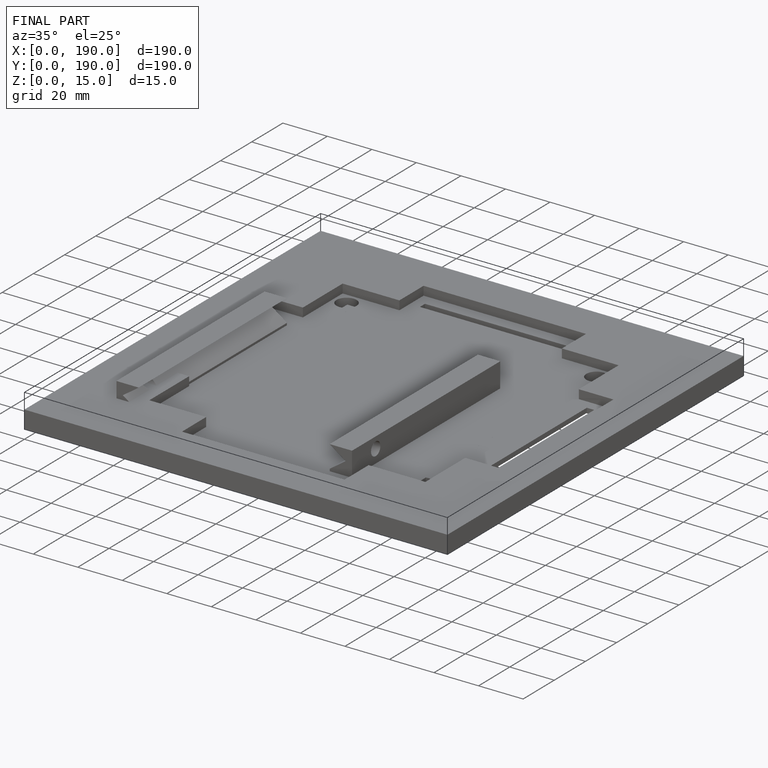
[diagram: finished part — iso view with bounding-box wireframe]
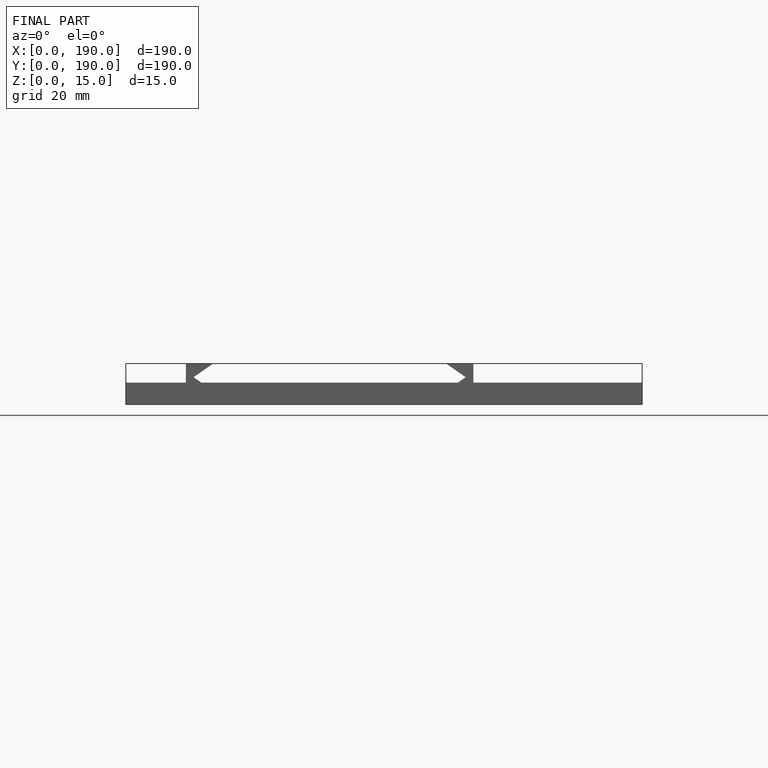
[diagram: finished part — front view with bounding-box wireframe]
